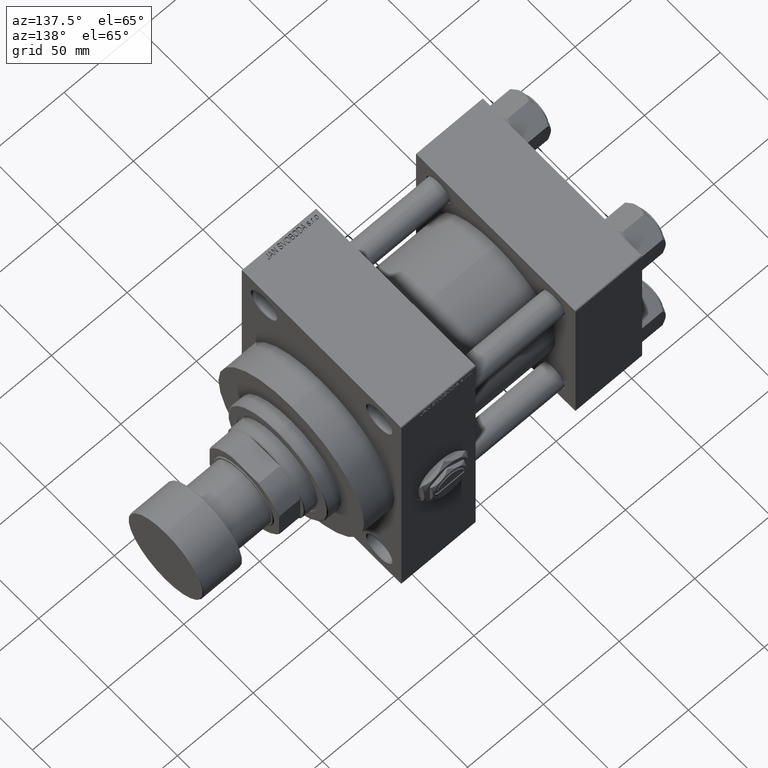
[diagram: clean part render]
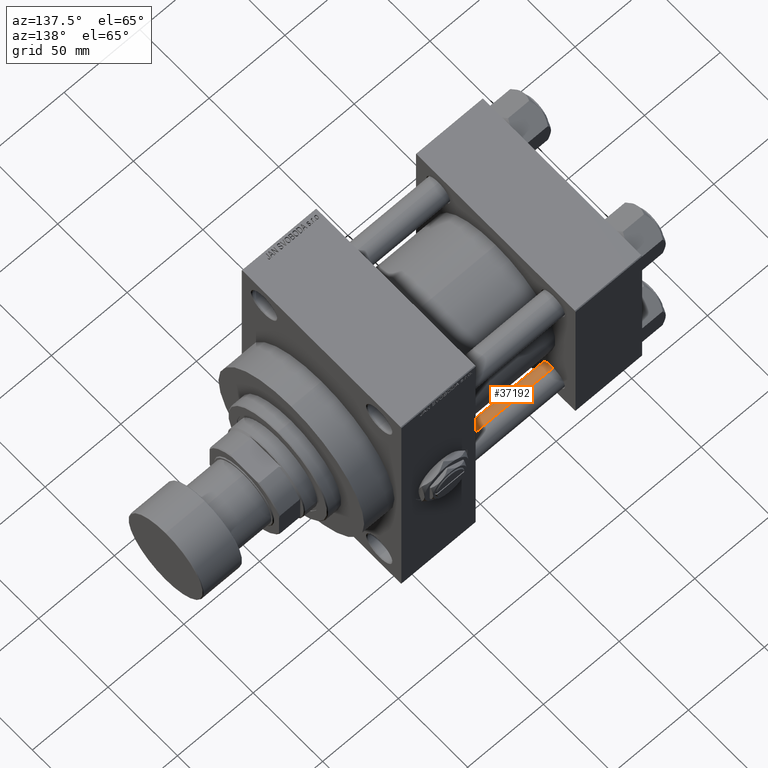
[diagram: same view with one face highlighted and labeled with its STEP entity id]
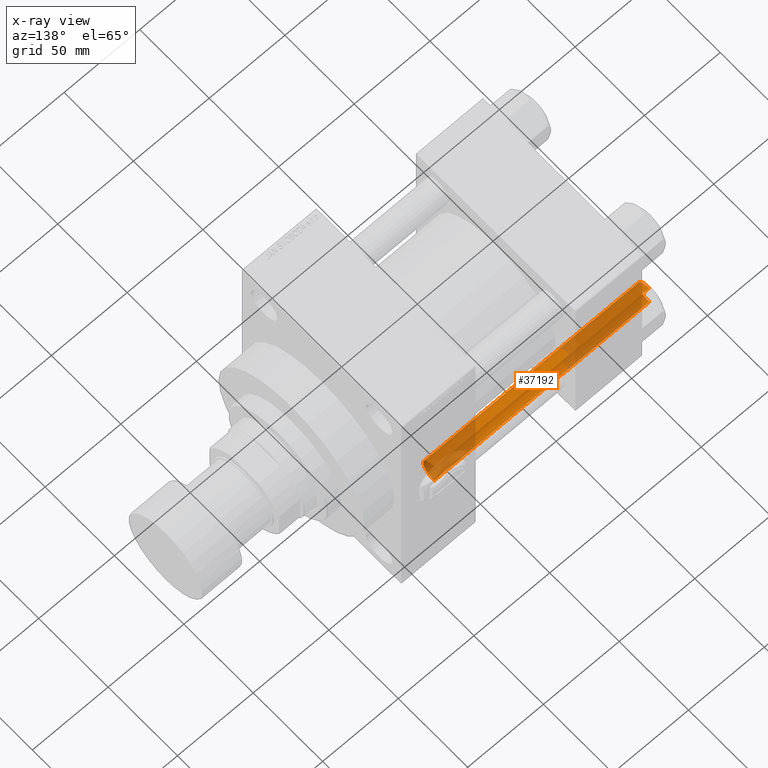
[diagram: x-ray of the same camera — body ghosted, the highlighted face saturated]
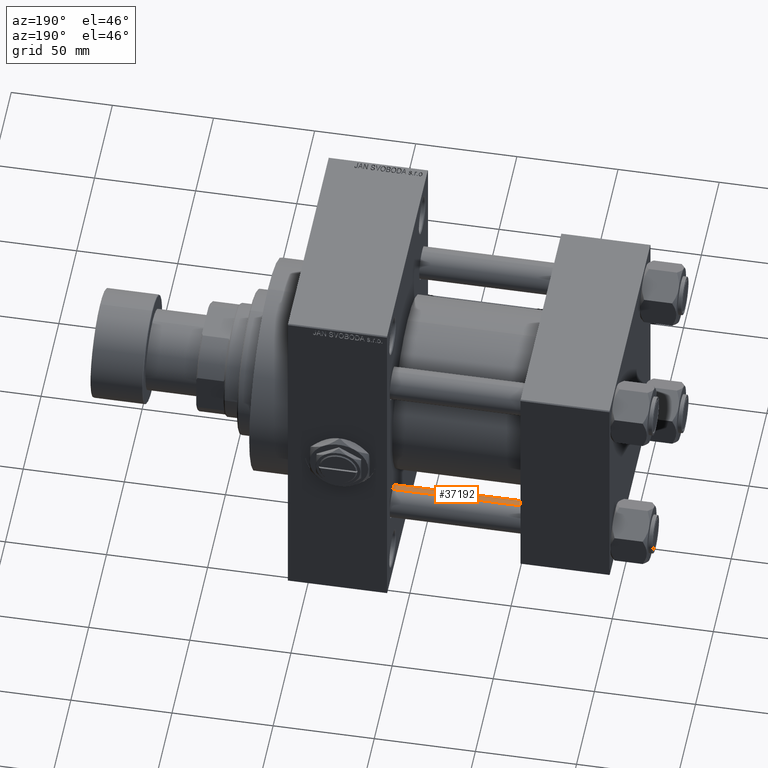
[diagram: same view with one face highlighted and labeled with its STEP entity id]
A machine part, auxiliary view. The second image highlights one B-rep face of the part: STEP entity #37192.
The next image is the same camera in x-ray: the body ghosted, the highlighted face saturated — about 57% of this face is hidden behind the body in this view.
A second angle (auxiliary view) of the same face is appended — the face is thin or edge-on in the first view.
In plain terms, the highlighted cylindrical surface (edge-blend (fillet) strip) has radius 8 mm, axis along (-1, -0, 0).
Its self-contained STEP definition (entity closure, byte-faithful):
#1036 = CARTESIAN_POINT ( 'NONE',  ( -8.000000000000000000, 0.000000000000000000, 0.4999999999999726885 ) ) ;
#1070 = DIRECTION ( 'NONE',  ( -0.000000000000000000, -0.000000000000000000, 1.000000000000000000 ) ) ;
#1931 = VERTEX_POINT ( 'NONE', #43109 ) ;
#2316 = FACE_OUTER_BOUND ( 'NONE', #6694, .T. ) ;
#6048 = CARTESIAN_POINT ( 'NONE',  ( 8.000000000000000000, 9.797174393178825657E-16, 0.4999999999999726885 ) ) ;
#6694 = EDGE_LOOP ( 'NONE', ( #29877, #20835, #30875, #14036 ) ) ;
#7757 = EDGE_CURVE ( 'NONE', #1931, #19582, #31659, .T. ) ;
#10881 = AXIS2_PLACEMENT_3D ( 'NONE', #18334, #17830, #44429 ) ;
#11379 = EDGE_CURVE ( 'NONE', #45866, #46371, #39148, .T. ) ;
#11635 = CARTESIAN_POINT ( 'NONE',  ( 0.000000000000000000, 0.000000000000000000, 0.4999999999999726885 ) ) ;
#12622 = AXIS2_PLACEMENT_3D ( 'NONE', #11635, #1070, #16376 ) ;
#13269 = CIRCLE ( 'NONE', #10881, 8.000000000000000000 ) ;
#14036 = ORIENTED_EDGE ( 'NONE', *, *, #35685, .T. ) ;
#14268 = AXIS2_PLACEMENT_3D ( 'NONE', #36937, #14604, #37439 ) ;
#14604 = DIRECTION ( 'NONE',  ( -0.000000000000000000, -0.000000000000000000, -1.000000000000000000 ) ) ;
#16376 = DIRECTION ( 'NONE',  ( 1.000000000000000000, 0.000000000000000000, 0.000000000000000000 ) ) ;
#17830 = DIRECTION ( 'NONE',  ( 0.000000000000000000, 0.000000000000000000, -1.000000000000000000 ) ) ;
#18334 = CARTESIAN_POINT ( 'NONE',  ( 0.000000000000000000, 0.000000000000000000, 142.4999999999999716 ) ) ;
#19332 = CARTESIAN_POINT ( 'NONE',  ( -8.000000000000000000, 0.000000000000000000, 143.0000000000000000 ) ) ;
#19582 = VERTEX_POINT ( 'NONE', #6048 ) ;
#19828 = DIRECTION ( 'NONE',  ( -0.000000000000000000, -0.000000000000000000, -1.000000000000000000 ) ) ;
#20537 = CARTESIAN_POINT ( 'NONE',  ( -8.000000000000000000, 0.000000000000000000, 142.4999999999999716 ) ) ;
#20835 = ORIENTED_EDGE ( 'NONE', *, *, #27291, .T. ) ;
#20871 = CARTESIAN_POINT ( 'NONE',  ( 8.000000000000000000, 9.797174393178825657E-16, 143.0000000000000000 ) ) ;
#23891 = DIRECTION ( 'NONE',  ( -0.000000000000000000, -0.000000000000000000, -1.000000000000000000 ) ) ;
#27291 = EDGE_CURVE ( 'NONE', #1931, #45866, #13269, .T. ) ;
#29644 = CYLINDRICAL_SURFACE ( 'NONE', #14268, 8.000000000000000000 ) ;
#29877 = ORIENTED_EDGE ( 'NONE', *, *, #7757, .F. ) ;
#30875 = ORIENTED_EDGE ( 'NONE', *, *, #11379, .T. ) ;
#31659 = LINE ( 'NONE', #20871, #31908 ) ;
#31908 = VECTOR ( 'NONE', #23891, 1000.000000000000000 ) ;
#35685 = EDGE_CURVE ( 'NONE', #46371, #19582, #41471, .T. ) ;
#36937 = CARTESIAN_POINT ( 'NONE',  ( 0.000000000000000000, 0.000000000000000000, 143.0000000000000000 ) ) ;
#37192 = ADVANCED_FACE ( 'NONE', ( #2316 ), #29644, .T. ) ;
#37439 = DIRECTION ( 'NONE',  ( -1.000000000000000000, 0.000000000000000000, 0.000000000000000000 ) ) ;
#39148 = LINE ( 'NONE', #19332, #48894 ) ;
#41471 = CIRCLE ( 'NONE', #12622, 8.000000000000000000 ) ;
#43109 = CARTESIAN_POINT ( 'NONE',  ( 8.000000000000000000, 9.797174393178825657E-16, 142.4999999999999716 ) ) ;
#44429 = DIRECTION ( 'NONE',  ( 1.000000000000000000, 0.000000000000000000, 0.000000000000000000 ) ) ;
#45866 = VERTEX_POINT ( 'NONE', #20537 ) ;
#46371 = VERTEX_POINT ( 'NONE', #1036 ) ;
#48894 = VECTOR ( 'NONE', #19828, 1000.000000000000000 ) ;